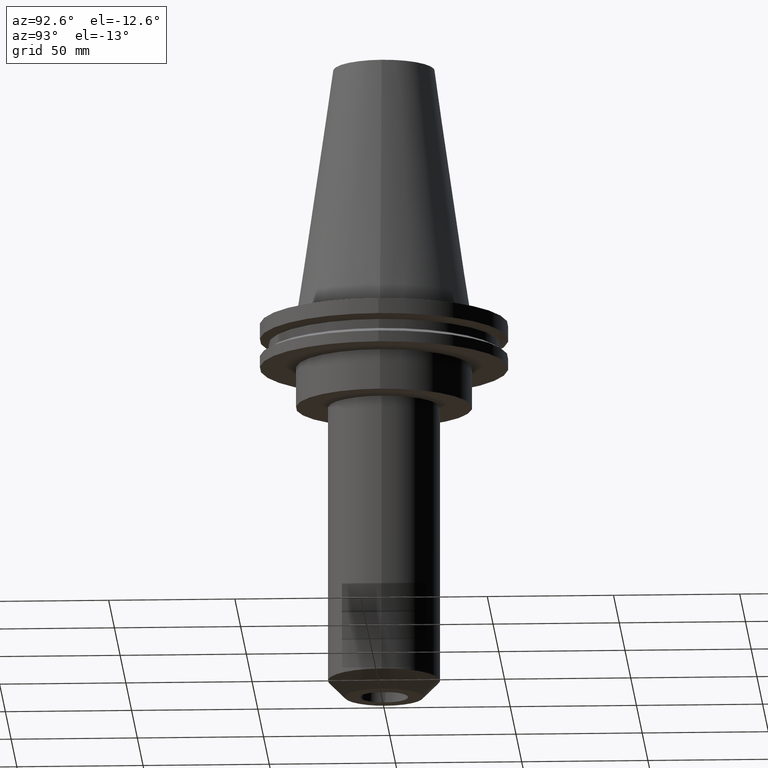
[diagram: clean part render]
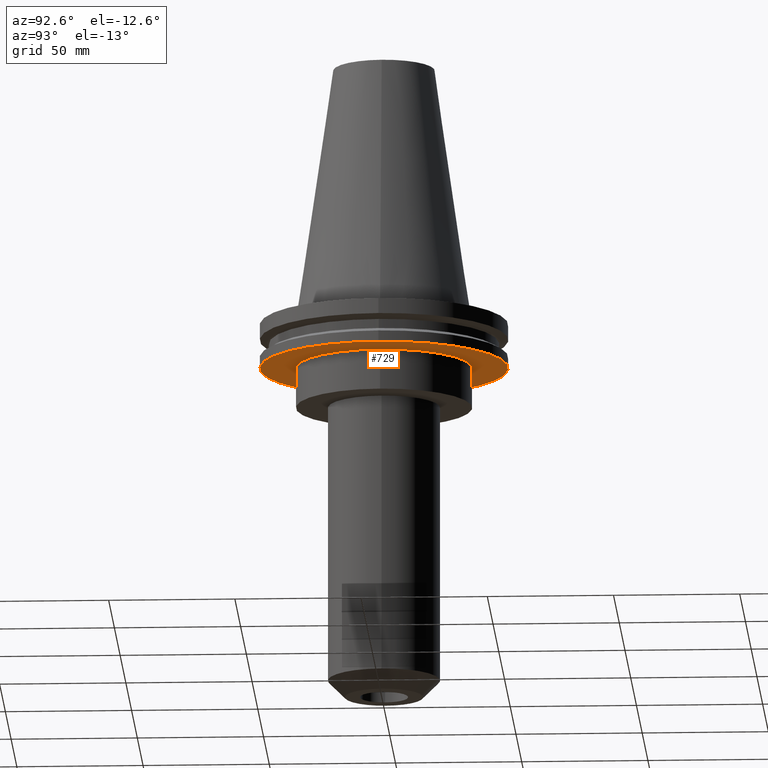
[diagram: same view with one face highlighted and labeled with its STEP entity id]
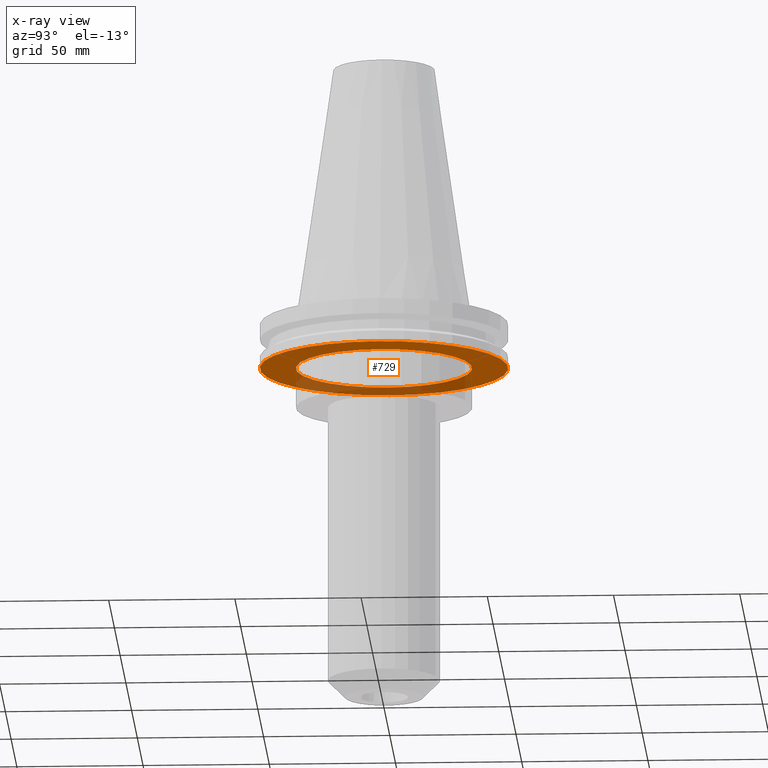
[diagram: x-ray of the same camera — body ghosted, the highlighted face saturated]
A machine part, auxiliary view. The second image highlights one B-rep face of the part: STEP entity #729.
The next image is the same camera in x-ray: the body ghosted, the highlighted face saturated — about 30% of this face is hidden behind the body in this view.
In plain terms, the highlighted planar face has unit normal (0, -0, 1).
Its self-contained STEP definition (entity closure, byte-faithful):
#19 = CARTESIAN_POINT ( 'NONE',  ( 0.000000000000000000, 49.21499999999998920, -19.04999999999999716 ) ) ;
#21 = VERTEX_POINT ( 'NONE', #142 ) ;
#52 = ORIENTED_EDGE ( 'NONE', *, *, #102, .F. ) ;
#87 = ORIENTED_EDGE ( 'NONE', *, *, #808, .T. ) ;
#102 = EDGE_CURVE ( 'NONE', #21, #710, #347, .T. ) ;
#137 = CARTESIAN_POINT ( 'NONE',  ( 0.000000000000000000, 0.000000000000000000, -19.04999999999999716 ) ) ;
#142 = CARTESIAN_POINT ( 'NONE',  ( -49.21499999999998920, 6.027099222003697037E-15, -19.04999999999999716 ) ) ;
#152 = DIRECTION ( 'NONE',  ( -0.000000000000000000, -0.000000000000000000, 1.000000000000000000 ) ) ;
#181 = CARTESIAN_POINT ( 'NONE',  ( -34.92499999999999716, 4.277078946022130887E-15, -19.04999999999999716 ) ) ;
#185 = AXIS2_PLACEMENT_3D ( 'NONE', #216, #152, #692 ) ;
#196 = DIRECTION ( 'NONE',  ( 1.000000000000000000, 0.000000000000000000, 0.000000000000000000 ) ) ;
#216 = CARTESIAN_POINT ( 'NONE',  ( 0.000000000000000000, 0.000000000000000000, -19.04999999999999716 ) ) ;
#219 = FACE_OUTER_BOUND ( 'NONE', #496, .T. ) ;
#250 = DIRECTION ( 'NONE',  ( 1.000000000000000000, 0.000000000000000000, 0.000000000000000000 ) ) ;
#277 = DIRECTION ( 'NONE',  ( 0.000000000000000000, -0.000000000000000000, 1.000000000000000000 ) ) ;
#284 = AXIS2_PLACEMENT_3D ( 'NONE', #453, #324, #651 ) ;
#324 = DIRECTION ( 'NONE',  ( -0.000000000000000000, -0.000000000000000000, 1.000000000000000000 ) ) ;
#338 = FACE_BOUND ( 'NONE', #775, .T. ) ;
#347 = CIRCLE ( 'NONE', #509, 49.21499999999998920 ) ;
#395 = CARTESIAN_POINT ( 'NONE',  ( 0.000000000000000000, 0.000000000000000000, -19.04999999999999716 ) ) ;
#404 = CARTESIAN_POINT ( 'NONE',  ( 49.21499999999998920, 0.000000000000000000, -19.04999999999999716 ) ) ;
#438 = CIRCLE ( 'NONE', #185, 34.92499999999999716 ) ;
#453 = CARTESIAN_POINT ( 'NONE',  ( 0.000000000000000000, 0.000000000000000000, -19.04999999999999716 ) ) ;
#458 = VERTEX_POINT ( 'NONE', #181 ) ;
#496 = EDGE_LOOP ( 'NONE', ( #726, #52 ) ) ;
#509 = AXIS2_PLACEMENT_3D ( 'NONE', #395, #599, #196 ) ;
#527 = CARTESIAN_POINT ( 'NONE',  ( 34.92499999999999716, 0.000000000000000000, -19.04999999999999716 ) ) ;
#537 = CIRCLE ( 'NONE', #772, 49.21499999999998920 ) ;
#599 = DIRECTION ( 'NONE',  ( -0.000000000000000000, -0.000000000000000000, 1.000000000000000000 ) ) ;
#613 = PLANE ( 'NONE',  #676 ) ;
#648 = DIRECTION ( 'NONE',  ( -0.000000000000000000, -0.000000000000000000, 1.000000000000000000 ) ) ;
#651 = DIRECTION ( 'NONE',  ( 1.000000000000000000, 0.000000000000000000, 0.000000000000000000 ) ) ;
#668 = ORIENTED_EDGE ( 'NONE', *, *, #752, .T. ) ;
#676 = AXIS2_PLACEMENT_3D ( 'NONE', #19, #277, #754 ) ;
#692 = DIRECTION ( 'NONE',  ( 1.000000000000000000, 0.000000000000000000, 0.000000000000000000 ) ) ;
#710 = VERTEX_POINT ( 'NONE', #404 ) ;
#726 = ORIENTED_EDGE ( 'NONE', *, *, #830, .F. ) ;
#729 = ADVANCED_FACE ( 'NONE', ( #219, #338 ), #613, .F. ) ;
#752 = EDGE_CURVE ( 'NONE', #458, #812, #438, .T. ) ;
#754 = DIRECTION ( 'NONE',  ( 1.000000000000000000, 0.000000000000000000, 0.000000000000000000 ) ) ;
#772 = AXIS2_PLACEMENT_3D ( 'NONE', #137, #648, #250 ) ;
#775 = EDGE_LOOP ( 'NONE', ( #87, #668 ) ) ;
#808 = EDGE_CURVE ( 'NONE', #812, #458, #837, .T. ) ;
#812 = VERTEX_POINT ( 'NONE', #527 ) ;
#830 = EDGE_CURVE ( 'NONE', #710, #21, #537, .T. ) ;
#837 = CIRCLE ( 'NONE', #284, 34.92499999999999716 ) ;